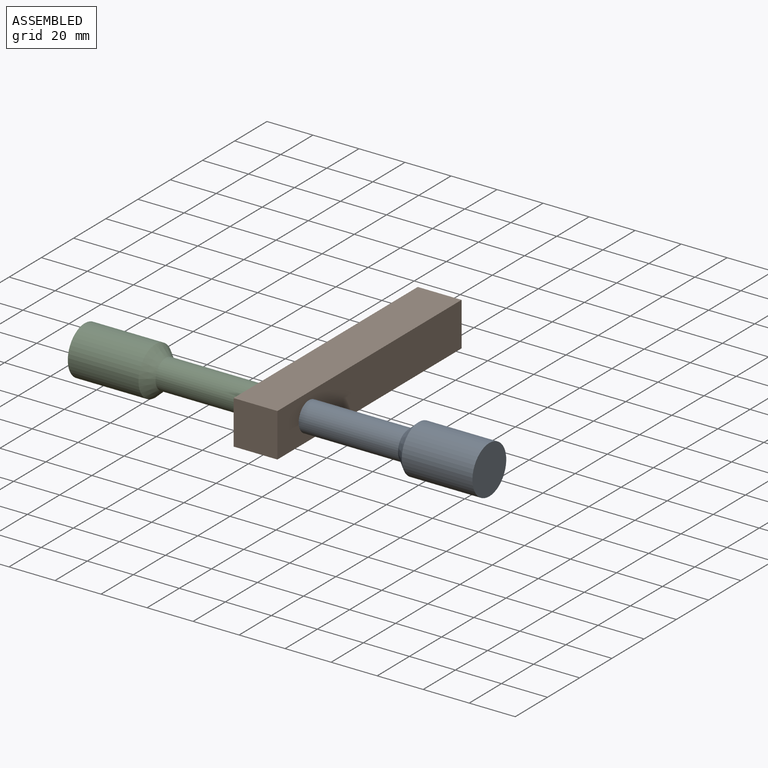
[diagram: assembled view]
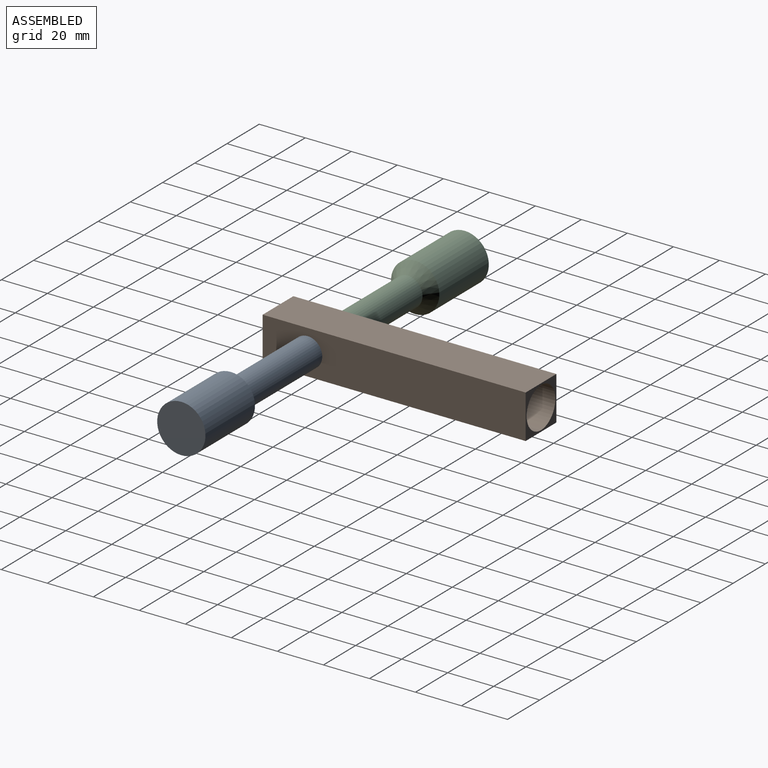
[diagram: assembled view, second angle]
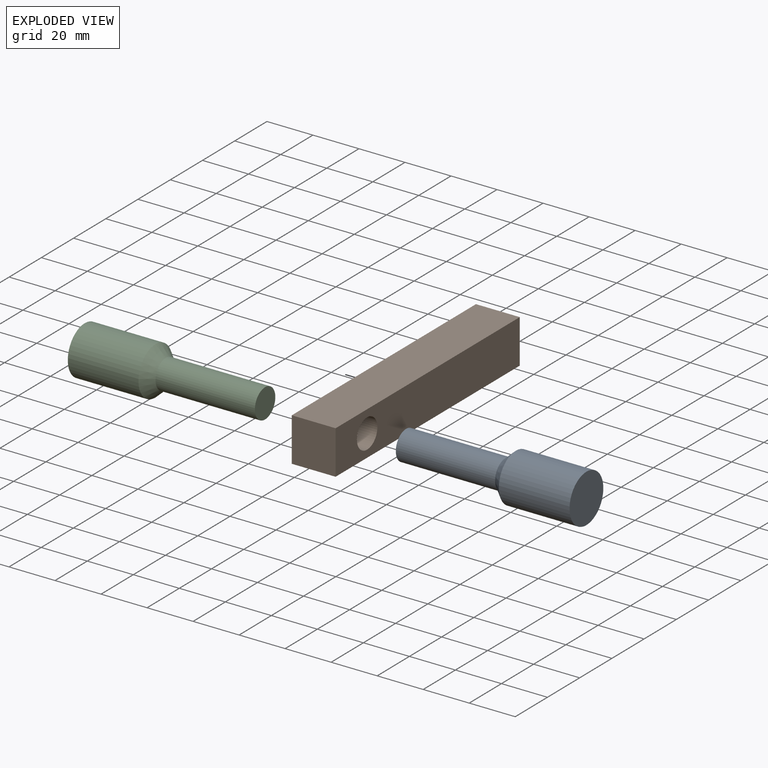
[diagram: exploded view]
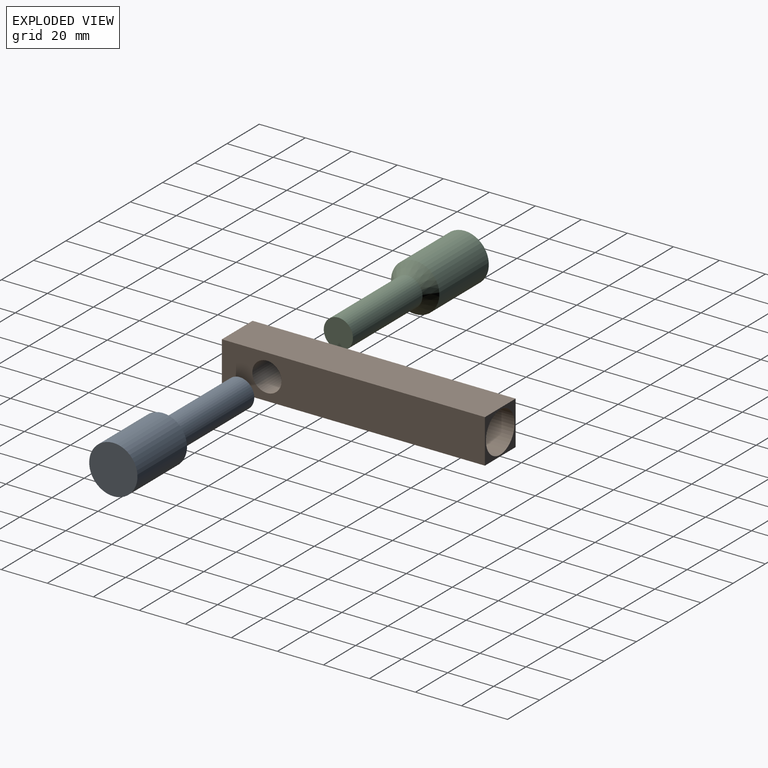
[diagram: exploded view, second angle]
ASSEMBLY  parts=3 mates=4
PART A: 5 faces, bbox 78.4x21x21 mm
  f0: cylinder r=6.35mm len=43.15mm, axis (1,0,0), area 1721.8mm2, adj f1,f4
  f1: plane 12.7x12.7mm, normal (-1,0,0), area 126.7mm2, adj f0
  f2: plane 20.99x20.99mm, normal (1,0,0), area 346.2mm2, adj f3
  f3: cylinder r=10.5mm len=30.73mm, axis (1,0,0), area 2026.4mm2, adj f2,f4
  f4: cone r=6.35mm half-angle=42.5deg, axis (1,0,0), area 324.8mm2, adj f0,f3
PART B: 9 faces, bbox 19.1x19.1x114.3 mm
  f0: plane 19.05x19.05mm, normal (0,0,1), area 362.9mm2, adj f1,f3,f4,f5
  f1: plane 114.3x19.05mm, normal (-1,0,0), area 2177.4mm2, adj f0,f2,f4,f5
  f2: plane 19.05x19.05mm, normal (0,0,-1), area 114.6mm2, adj f1,f3,f4,f5,f6
  f3: plane 114.3x19.05mm, normal (1,0,0), area 2177.4mm2, adj f0,f2,f4,f5
  f4: plane 114.3x19.05mm, normal (0,-1,0), area 2050.7mm2, adj f0,f1,f2,f3,f8
  f5: plane 114.3x19.05mm, normal (0,1,0), area 2050.7mm2, adj f0,f1,f2,f3,f8
  f6: cylinder r=8.89mm len=44.45mm, axis (0,0,-1), area 2482.9mm2, adj f2,f7
  f7: plane 17.78x17.78mm, normal (0,0,-1), area 248.3mm2, adj f6
  f8: cylinder r=6.35mm len=19.05mm, axis (0,1,0), area 760.1mm2, adj f4,f5
PART C: same geometry as A
PLACE A rot(axis=(0,-1,0),0deg) t=(-28.5,-38.83,2.26)mm
PLACE B rot(axis=(0.58,-0.58,0.58),120deg) t=(-47.55,25.18,2.26)mm fixed
PLACE C rot(axis=(0,1,0),180deg) t=(-47.55,-38.83,2.26)mm
MATE parallel A.f0 <-> B.f8  axis (-1,0,0) through (-28.5,-38.83,2.26)mm
MATE parallel A.f0 <-> B.f8  axis (-1,0,0) through (-28.5,-38.83,2.26)mm
MATE parallel C.f0 <-> B.f8  axis (1,0,0) through (-47.55,-38.83,2.26)mm
MATE parallel B.f8 <-> C.f0  axis (-1,0,0) through (-47.55,-38.83,2.26)mm
